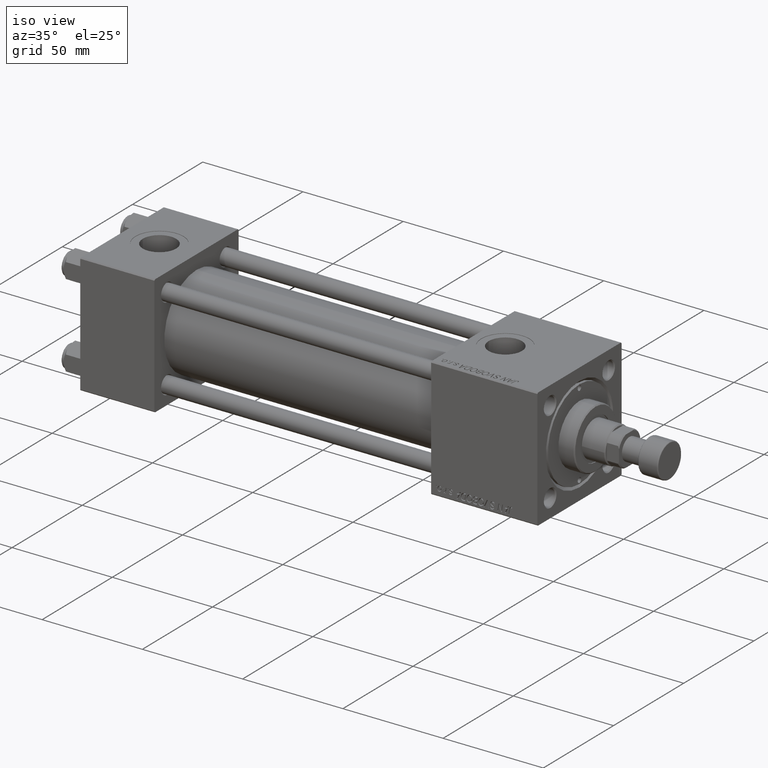
[diagram: clean part render]
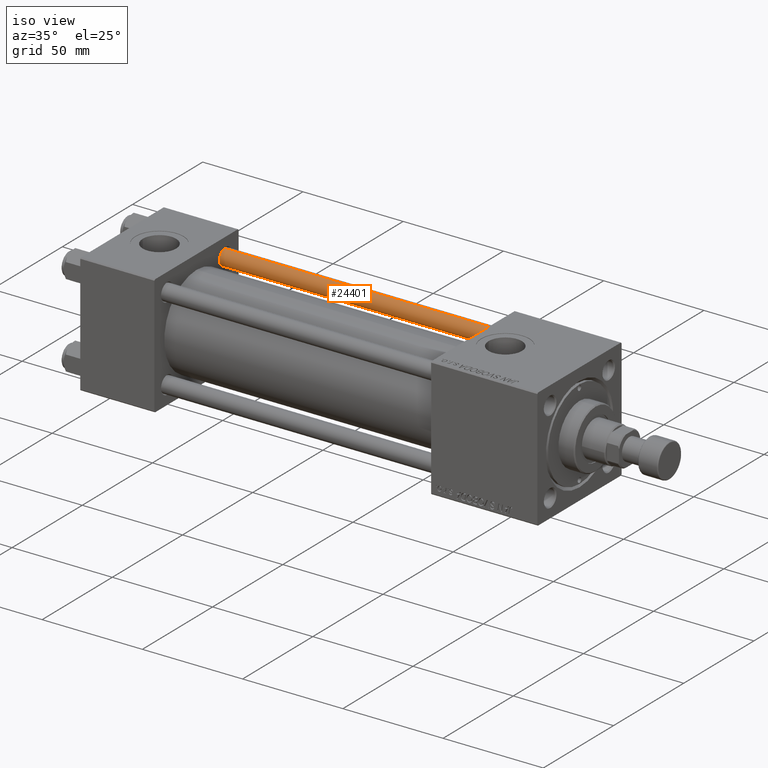
[diagram: same view with one face highlighted and labeled with its STEP entity id]
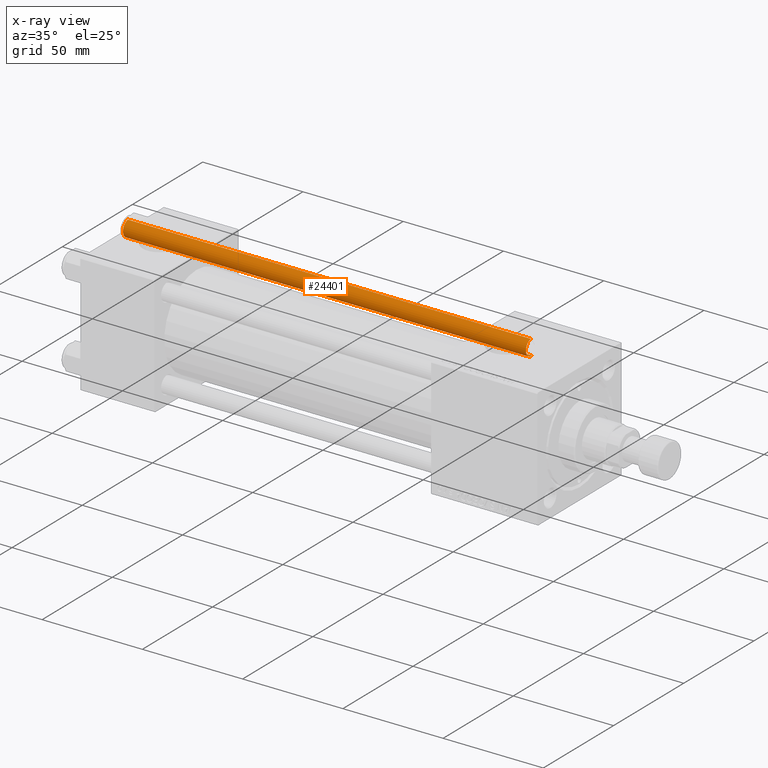
[diagram: x-ray of the same camera — body ghosted, the highlighted face saturated]
A machine part, iso view. The second image highlights one B-rep face of the part: STEP entity #24401.
The next image is the same camera in x-ray: the body ghosted, the highlighted face saturated — about 0% of this face is hidden behind the body in this view.
In plain terms, the highlighted cylindrical surface (edge-blend (fillet) strip) has radius 4 mm, axis along (-1, 0, 0).
Its self-contained STEP definition (entity closure, byte-faithful):
#3389 = DIRECTION ( 'NONE',  ( -0.000000000000000000, -0.000000000000000000, -1.000000000000000000 ) ) ;
#4486 = CIRCLE ( 'NONE', #16394, 4.000000000000000000 ) ;
#8575 = FACE_OUTER_BOUND ( 'NONE', #51169, .T. ) ;
#8893 = VECTOR ( 'NONE', #3389, 1000.000000000000000 ) ;
#13548 = CARTESIAN_POINT ( 'NONE',  ( -4.000000000000000000, 0.000000000000000000, 0.5000000000000004441 ) ) ;
#15386 = CARTESIAN_POINT ( 'NONE',  ( 4.000000000000000000, 4.898587196589412829E-16, 202.0000000000000000 ) ) ;
#15426 = VERTEX_POINT ( 'NONE', #13548 ) ;
#15537 = DIRECTION ( 'NONE',  ( 0.000000000000000000, 0.000000000000000000, -1.000000000000000000 ) ) ;
#16394 = AXIS2_PLACEMENT_3D ( 'NONE', #35703, #51992, #43202 ) ;
#19244 = EDGE_CURVE ( 'NONE', #49993, #32556, #24185, .T. ) ;
#20847 = LINE ( 'NONE', #49407, #46899 ) ;
#21128 = DIRECTION ( 'NONE',  ( -0.000000000000000000, -0.000000000000000000, -1.000000000000000000 ) ) ;
#22009 = EDGE_CURVE ( 'NONE', #49993, #36202, #51986, .T. ) ;
#24185 = CIRCLE ( 'NONE', #29295, 4.000000000000000000 ) ;
#24401 = ADVANCED_FACE ( 'NONE', ( #8575 ), #24863, .T. ) ;
#24863 = CYLINDRICAL_SURFACE ( 'NONE', #36302, 4.000000000000000000 ) ;
#24910 = CARTESIAN_POINT ( 'NONE',  ( 4.000000000000000000, 4.898587196589412829E-16, 0.5000000000000004441 ) ) ;
#25145 = ORIENTED_EDGE ( 'NONE', *, *, #19244, .T. ) ;
#25630 = DIRECTION ( 'NONE',  ( -0.000000000000000000, -0.000000000000000000, -1.000000000000000000 ) ) ;
#29274 = ORIENTED_EDGE ( 'NONE', *, *, #22009, .F. ) ;
#29295 = AXIS2_PLACEMENT_3D ( 'NONE', #52133, #15537, #31840 ) ;
#31840 = DIRECTION ( 'NONE',  ( 1.000000000000000000, 0.000000000000000000, 0.000000000000000000 ) ) ;
#32556 = VERTEX_POINT ( 'NONE', #43694 ) ;
#33139 = CARTESIAN_POINT ( 'NONE',  ( 0.000000000000000000, 0.000000000000000000, 202.0000000000000000 ) ) ;
#35703 = CARTESIAN_POINT ( 'NONE',  ( 0.000000000000000000, 0.000000000000000000, 0.5000000000000004441 ) ) ;
#36202 = VERTEX_POINT ( 'NONE', #24910 ) ;
#36302 = AXIS2_PLACEMENT_3D ( 'NONE', #33139, #21128, #41164 ) ;
#40150 = CARTESIAN_POINT ( 'NONE',  ( 4.000000000000000000, 4.898587196589412829E-16, 201.5000000000000000 ) ) ;
#41164 = DIRECTION ( 'NONE',  ( -1.000000000000000000, 0.000000000000000000, 0.000000000000000000 ) ) ;
#43202 = DIRECTION ( 'NONE',  ( 1.000000000000000000, 0.000000000000000000, 0.000000000000000000 ) ) ;
#43694 = CARTESIAN_POINT ( 'NONE',  ( -4.000000000000000000, 0.000000000000000000, 201.5000000000000000 ) ) ;
#44780 = ORIENTED_EDGE ( 'NONE', *, *, #46623, .T. ) ;
#45896 = ORIENTED_EDGE ( 'NONE', *, *, #51424, .T. ) ;
#46623 = EDGE_CURVE ( 'NONE', #32556, #15426, #20847, .T. ) ;
#46899 = VECTOR ( 'NONE', #25630, 1000.000000000000000 ) ;
#49407 = CARTESIAN_POINT ( 'NONE',  ( -4.000000000000000000, 0.000000000000000000, 202.0000000000000000 ) ) ;
#49993 = VERTEX_POINT ( 'NONE', #40150 ) ;
#51169 = EDGE_LOOP ( 'NONE', ( #29274, #25145, #44780, #45896 ) ) ;
#51424 = EDGE_CURVE ( 'NONE', #15426, #36202, #4486, .T. ) ;
#51986 = LINE ( 'NONE', #15386, #8893 ) ;
#51992 = DIRECTION ( 'NONE',  ( -0.000000000000000000, -0.000000000000000000, 1.000000000000000000 ) ) ;
#52133 = CARTESIAN_POINT ( 'NONE',  ( 0.000000000000000000, 0.000000000000000000, 201.5000000000000000 ) ) ;